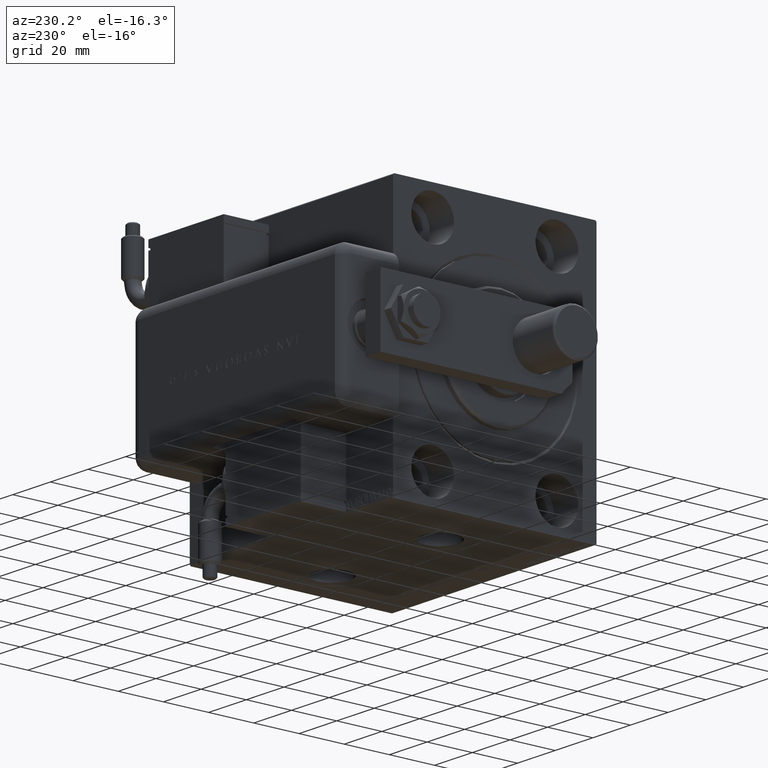
[diagram: clean part render]
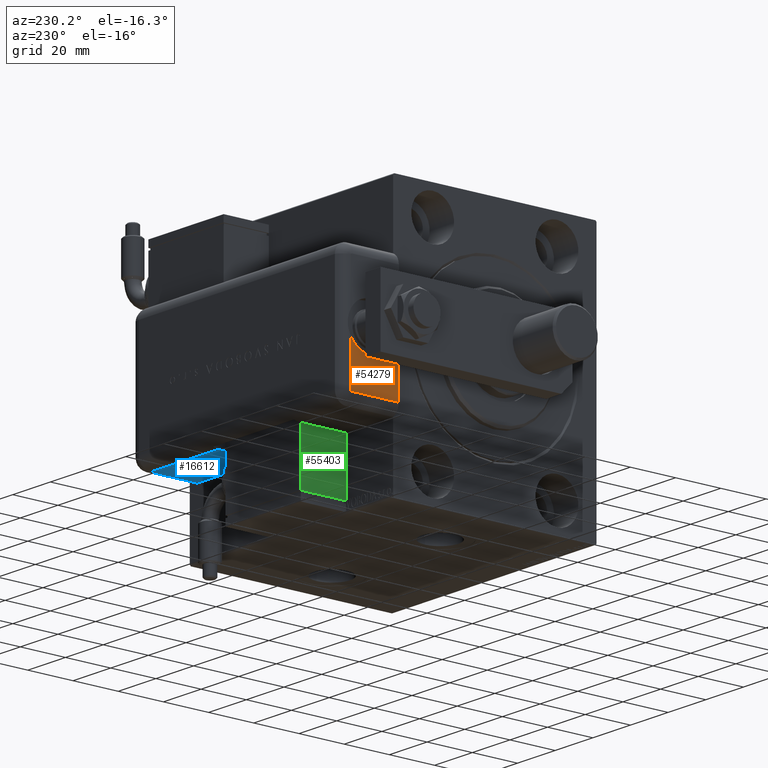
[diagram: same view with three faces highlighted in distinct colors, each labeled with its STEP entity id]
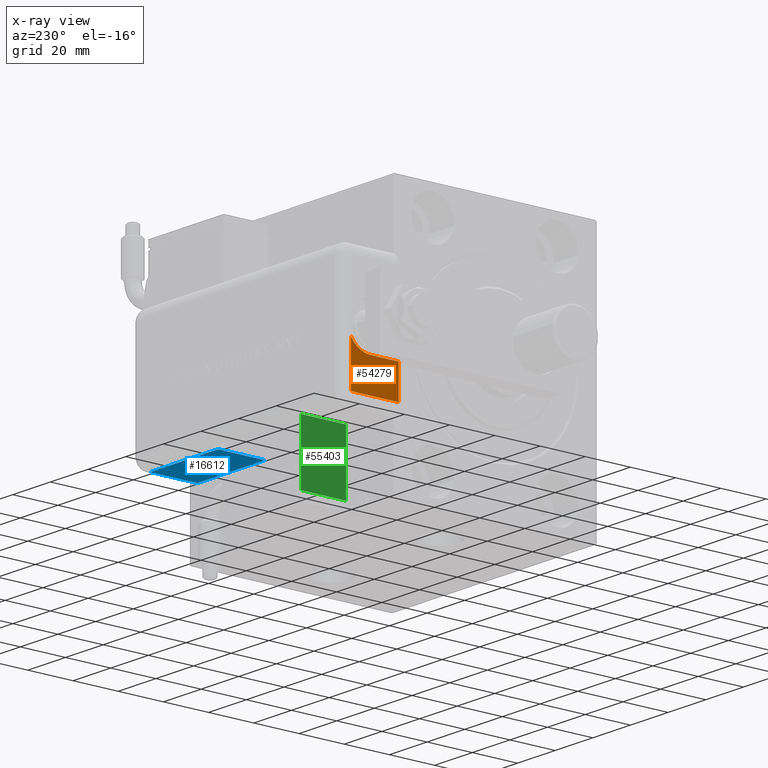
[diagram: x-ray of the same camera — body ghosted, the three highlighted faces saturated]
A machine part, auxiliary view with three faces highlighted in distinct colors.
The next image is the same camera in x-ray (body ghosted, the three faces saturated) — at least one of them is partly hidden behind the body in this view.
Their STEP definitions:

[orange] entity #54279 — the highlighted planar face has unit normal (-1, 0, 0).
#3622 = LINE ( 'NONE', #36467, #61170 ) ;
#6349 = EDGE_CURVE ( 'NONE', #39448, #12632, #50459, .T. ) ;
#7733 = EDGE_CURVE ( 'NONE', #32482, #10305, #41555, .T. ) ;
#7792 = DIRECTION ( 'NONE',  ( 1.000000000000000000, 0.000000000000000000, -0.000000000000000000 ) ) ;
#10011 = LINE ( 'NONE', #58467, #54905 ) ;
#10305 = VERTEX_POINT ( 'NONE', #30104 ) ;
#11313 = DIRECTION ( 'NONE',  ( 0.000000000000000000, 0.000000000000000000, 1.000000000000000000 ) ) ;
#11314 = ORIENTED_EDGE ( 'NONE', *, *, #60923, .T. ) ;
#11576 = CARTESIAN_POINT ( 'NONE',  ( -1.734723475976807094E-15, 12.49999964024999599, 112.0000000000000000 ) ) ;
#12632 = VERTEX_POINT ( 'NONE', #58833 ) ;
#13060 = DIRECTION ( 'NONE',  ( -1.000000000000000000, 0.000000000000000000, -0.000000000000000000 ) ) ;
#14562 = AXIS2_PLACEMENT_3D ( 'NONE', #11576, #15946, #45354 ) ;
#15946 = DIRECTION ( 'NONE',  ( 0.000000000000000000, 0.000000000000000000, 1.000000000000000000 ) ) ;
#17136 = CARTESIAN_POINT ( 'NONE',  ( -24.41742430504415751, -1.040834085586084257E-14, 112.0000000000000000 ) ) ;
#19567 = CARTESIAN_POINT ( 'NONE',  ( -4.899643580265686360, 21.21742430504414045, 112.0000000000000000 ) ) ;
#21549 = DIRECTION ( 'NONE',  ( 0.000000000000000000, 0.000000000000000000, 1.000000000000000000 ) ) ;
#22689 = VECTOR ( 'NONE', #51523, 1000.000000000000000 ) ;
#28920 = ORIENTED_EDGE ( 'NONE', *, *, #45772, .T. ) ;
#30073 = DIRECTION ( 'NONE',  ( 1.000000000000000000, 0.000000000000000000, 0.000000000000000000 ) ) ;
#30104 = CARTESIAN_POINT ( 'NONE',  ( -10.00000000000000355, 12.49999964024999599, 112.0000000000000000 ) ) ;
#30938 = FACE_OUTER_BOUND ( 'NONE', #48387, .T. ) ;
#32459 = LINE ( 'NONE', #17136, #22689 ) ;
#32482 = VERTEX_POINT ( 'NONE', #19567 ) ;
#33590 = ORIENTED_EDGE ( 'NONE', *, *, #46001, .F. ) ;
#34444 = EDGE_CURVE ( 'NONE', #12632, #56540, #32459, .T. ) ;
#35706 = CARTESIAN_POINT ( 'NONE',  ( -23.99999999999999645, 20.79999999999998295, 112.0000000000000000 ) ) ;
#36467 = CARTESIAN_POINT ( 'NONE',  ( -28.99999999999999645, -9.421223957302265857E-15, 112.0000000000000000 ) ) ;
#37232 = ORIENTED_EDGE ( 'NONE', *, *, #7733, .F. ) ;
#39448 = VERTEX_POINT ( 'NONE', #59508 ) ;
#40641 = CARTESIAN_POINT ( 'NONE',  ( 23.99999999999999289, 20.79999999999998295, 112.0000000000000000 ) ) ;
#41555 = CIRCLE ( 'NONE', #14562, 10.00000000000000178 ) ;
#44486 = AXIS2_PLACEMENT_3D ( 'NONE', #35706, #11313, #30073 ) ;
#45354 = DIRECTION ( 'NONE',  ( 1.000000000000000000, 0.000000000000000000, 0.000000000000000000 ) ) ;
#45772 = EDGE_CURVE ( 'NONE', #32482, #39448, #54124, .T. ) ;
#46001 = EDGE_CURVE ( 'NONE', #10305, #57493, #10011, .T. ) ;
#47896 = AXIS2_PLACEMENT_3D ( 'NONE', #40641, #21549, #7792 ) ;
#48387 = EDGE_LOOP ( 'NONE', ( #33590, #37232, #28920, #57615, #50087, #11314 ) ) ;
#48764 = DIRECTION ( 'NONE',  ( 1.387778820721720319E-16, -1.000000000000000000, -0.000000000000000000 ) ) ;
#49429 = CARTESIAN_POINT ( 'NONE',  ( -23.99999999999999289, 21.21742430504414045, 112.0000000000000000 ) ) ;
#50087 = ORIENTED_EDGE ( 'NONE', *, *, #34444, .T. ) ;
#50459 = CIRCLE ( 'NONE', #44486, 0.4174243050441631131 ) ;
#50516 = DIRECTION ( 'NONE',  ( 1.000000000000000000, 0.000000000000000000, 0.000000000000000000 ) ) ;
#50931 = VECTOR ( 'NONE', #13060, 1000.000000000000000 ) ;
#51523 = DIRECTION ( 'NONE',  ( -0.000000000000000000, -1.000000000000000000, 0.000000000000000000 ) ) ;
#54124 = LINE ( 'NONE', #49429, #50931 ) ;
#54279 = ADVANCED_FACE ( 'NONE', ( #30938 ), #55305, .T. ) ;
#54905 = VECTOR ( 'NONE', #48764, 1000.000000000000000 ) ;
#55305 = PLANE ( 'NONE',  #47896 ) ;
#56540 = VERTEX_POINT ( 'NONE', #61133 ) ;
#57493 = VERTEX_POINT ( 'NONE', #61633 ) ;
#57615 = ORIENTED_EDGE ( 'NONE', *, *, #6349, .T. ) ;
#58467 = CARTESIAN_POINT ( 'NONE',  ( -10.00000000000000178, -8.673617379884035472E-16, 112.0000000000000000 ) ) ;
#58833 = CARTESIAN_POINT ( 'NONE',  ( -24.41742430504416106, 20.79999999999998295, 112.0000000000000000 ) ) ;
#59508 = CARTESIAN_POINT ( 'NONE',  ( -23.99999999999999645, 21.21742430504414045, 112.0000000000000000 ) ) ;
#60923 = EDGE_CURVE ( 'NONE', #56540, #57493, #3622, .T. ) ;
#61133 = CARTESIAN_POINT ( 'NONE',  ( -24.41742430504415751, -1.040834085586084257E-14, 112.0000000000000000 ) ) ;
#61170 = VECTOR ( 'NONE', #50516, 1000.000000000000000 ) ;
#61633 = CARTESIAN_POINT ( 'NONE',  ( -10.00000000000000178, -8.673617379884035472E-16, 112.0000000000000000 ) ) ;

[blue] entity #16612 — the highlighted planar face has unit normal (0, 0, 1).
#639 = DIRECTION ( 'NONE',  ( 0.000000000000000000, 0.000000000000000000, -1.000000000000000000 ) ) ;
#2066 = VECTOR ( 'NONE', #639, 1000.000000000000000 ) ;
#4540 = ORIENTED_EDGE ( 'NONE', *, *, #55381, .F. ) ;
#4571 = CARTESIAN_POINT ( 'NONE',  ( -28.99999999999999645, 20.79999999999998295, 41.00000000000000711 ) ) ;
#4573 = CARTESIAN_POINT ( 'NONE',  ( -28.99999999999999645, 22.99999999999998934, 41.00000000000000711 ) ) ;
#5628 = EDGE_CURVE ( 'NONE', #41096, #38496, #57223, .T. ) ;
#12023 = DIRECTION ( 'NONE',  ( 1.000000000000000000, 0.000000000000000000, -0.000000000000000000 ) ) ;
#12917 = ORIENTED_EDGE ( 'NONE', *, *, #46768, .T. ) ;
#14750 = EDGE_LOOP ( 'NONE', ( #56908, #4540, #12917, #61065 ) ) ;
#15000 = CARTESIAN_POINT ( 'NONE',  ( -28.99999999999999645, 20.79999999999998295, 109.0000000000000000 ) ) ;
#16342 = VERTEX_POINT ( 'NONE', #4571 ) ;
#16612 = ADVANCED_FACE ( 'NONE', ( #30486 ), #55170, .F. ) ;
#20839 = LINE ( 'NONE', #34924, #42476 ) ;
#23761 = DIRECTION ( 'NONE',  ( -0.000000000000000000, -0.000000000000000000, -1.000000000000000000 ) ) ;
#24000 = CARTESIAN_POINT ( 'NONE',  ( -28.99999999999999645, 20.79999999999998295, 5.000000000000004441 ) ) ;
#24091 = LINE ( 'NONE', #15000, #2066 ) ;
#25139 = VERTEX_POINT ( 'NONE', #24000 ) ;
#25220 = EDGE_CURVE ( 'NONE', #25139, #38496, #20839, .T. ) ;
#30486 = FACE_OUTER_BOUND ( 'NONE', #14750, .T. ) ;
#32838 = CARTESIAN_POINT ( 'NONE',  ( -28.99999999999999645, -9.421223957302265857E-15, 109.0000000000000000 ) ) ;
#34924 = CARTESIAN_POINT ( 'NONE',  ( -28.99999999999999645, -1.040834085586084257E-14, 5.000000000000004441 ) ) ;
#38475 = VECTOR ( 'NONE', #23761, 1000.000000000000000 ) ;
#38496 = VERTEX_POINT ( 'NONE', #58259 ) ;
#40200 = DIRECTION ( 'NONE',  ( -0.000000000000000000, 0.000000000000000000, -1.000000000000000000 ) ) ;
#41096 = VERTEX_POINT ( 'NONE', #44853 ) ;
#42476 = VECTOR ( 'NONE', #48373, 1000.000000000000000 ) ;
#42951 = VECTOR ( 'NONE', #52097, 1000.000000000000000 ) ;
#44853 = CARTESIAN_POINT ( 'NONE',  ( -28.99999999999999645, -9.421223957302265857E-15, 41.00000000000000711 ) ) ;
#46768 = EDGE_CURVE ( 'NONE', #16342, #25139, #24091, .T. ) ;
#48373 = DIRECTION ( 'NONE',  ( 0.000000000000000000, -1.000000000000000000, 0.000000000000000000 ) ) ;
#49244 = CARTESIAN_POINT ( 'NONE',  ( -28.99999999999999645, 25.79999999999998295, 109.0000000000000000 ) ) ;
#52097 = DIRECTION ( 'NONE',  ( 0.000000000000000000, -1.000000000000000000, 0.000000000000000000 ) ) ;
#54739 = AXIS2_PLACEMENT_3D ( 'NONE', #49244, #12023, #40200 ) ;
#55170 = PLANE ( 'NONE',  #54739 ) ;
#55381 = EDGE_CURVE ( 'NONE', #16342, #41096, #61503, .T. ) ;
#56908 = ORIENTED_EDGE ( 'NONE', *, *, #5628, .F. ) ;
#57223 = LINE ( 'NONE', #32838, #38475 ) ;
#58259 = CARTESIAN_POINT ( 'NONE',  ( -28.99999999999999645, -9.421223957302265857E-15, 5.000000000000004441 ) ) ;
#61065 = ORIENTED_EDGE ( 'NONE', *, *, #25220, .T. ) ;
#61503 = LINE ( 'NONE', #4573, #42951 ) ;

[green] entity #55403 — the highlighted planar face has unit normal (1, 0, -0).
#5002 = ORIENTED_EDGE ( 'NONE', *, *, #49918, .T. ) ;
#7352 = LINE ( 'NONE', #31108, #20112 ) ;
#10591 = DIRECTION ( 'NONE',  ( -0.000000000000000000, -0.000000000000000000, -1.000000000000000000 ) ) ;
#11215 = CARTESIAN_POINT ( 'NONE',  ( 20.00000000000005329, -13.49999999999996092, 10.00000000000000000 ) ) ;
#13328 = FACE_OUTER_BOUND ( 'NONE', #53104, .T. ) ;
#13437 = VECTOR ( 'NONE', #10591, 1000.000000000000000 ) ;
#14773 = EDGE_CURVE ( 'NONE', #42304, #24152, #30799, .T. ) ;
#15699 = VECTOR ( 'NONE', #58212, 1000.000000000000000 ) ;
#15959 = AXIS2_PLACEMENT_3D ( 'NONE', #23028, #37119, #38351 ) ;
#18362 = ORIENTED_EDGE ( 'NONE', *, *, #14773, .F. ) ;
#20112 = VECTOR ( 'NONE', #46417, 1000.000000000000000 ) ;
#22055 = CARTESIAN_POINT ( 'NONE',  ( 20.00000000000005684, 13.50000000000003730, -10.00000000000000000 ) ) ;
#23028 = CARTESIAN_POINT ( 'NONE',  ( 20.00000000000005329, -13.49999999999996092, 10.00000000000000000 ) ) ;
#23674 = EDGE_CURVE ( 'NONE', #32785, #37126, #35608, .T. ) ;
#24152 = VERTEX_POINT ( 'NONE', #22055 ) ;
#30799 = LINE ( 'NONE', #50177, #48666 ) ;
#31108 = CARTESIAN_POINT ( 'NONE',  ( 20.00000000000005329, -13.49999999999996092, -10.00000000000000000 ) ) ;
#32721 = PLANE ( 'NONE',  #15959 ) ;
#32785 = VERTEX_POINT ( 'NONE', #52355 ) ;
#33999 = EDGE_CURVE ( 'NONE', #32785, #42304, #39452, .T. ) ;
#35608 = LINE ( 'NONE', #11215, #13437 ) ;
#37119 = DIRECTION ( 'NONE',  ( -1.000000000000000000, 1.284980352575412699E-16, 0.000000000000000000 ) ) ;
#37126 = VERTEX_POINT ( 'NONE', #40281 ) ;
#38351 = DIRECTION ( 'NONE',  ( -1.284980352575412699E-16, -1.000000000000000000, 0.000000000000000000 ) ) ;
#38839 = CARTESIAN_POINT ( 'NONE',  ( 20.00000000000005329, -13.49999999999996092, 10.00000000000000000 ) ) ;
#39452 = LINE ( 'NONE', #38839, #15699 ) ;
#39567 = ORIENTED_EDGE ( 'NONE', *, *, #33999, .F. ) ;
#40281 = CARTESIAN_POINT ( 'NONE',  ( 20.00000000000005329, -13.49999999999996092, -10.00000000000000000 ) ) ;
#41937 = ORIENTED_EDGE ( 'NONE', *, *, #23674, .T. ) ;
#42304 = VERTEX_POINT ( 'NONE', #47865 ) ;
#46417 = DIRECTION ( 'NONE',  ( 1.284980352575412699E-16, 1.000000000000000000, 0.000000000000000000 ) ) ;
#47865 = CARTESIAN_POINT ( 'NONE',  ( 20.00000000000005684, 13.50000000000003730, 10.00000000000000000 ) ) ;
#48666 = VECTOR ( 'NONE', #55482, 1000.000000000000000 ) ;
#49918 = EDGE_CURVE ( 'NONE', #37126, #24152, #7352, .T. ) ;
#50177 = CARTESIAN_POINT ( 'NONE',  ( 20.00000000000005684, 13.50000000000003730, 10.00000000000000000 ) ) ;
#52355 = CARTESIAN_POINT ( 'NONE',  ( 20.00000000000005329, -13.49999999999996092, 10.00000000000000000 ) ) ;
#53104 = EDGE_LOOP ( 'NONE', ( #5002, #18362, #39567, #41937 ) ) ;
#55403 = ADVANCED_FACE ( 'NONE', ( #13328 ), #32721, .F. ) ;
#55482 = DIRECTION ( 'NONE',  ( -0.000000000000000000, -0.000000000000000000, -1.000000000000000000 ) ) ;
#58212 = DIRECTION ( 'NONE',  ( 1.284980352575412699E-16, 1.000000000000000000, 0.000000000000000000 ) ) ;